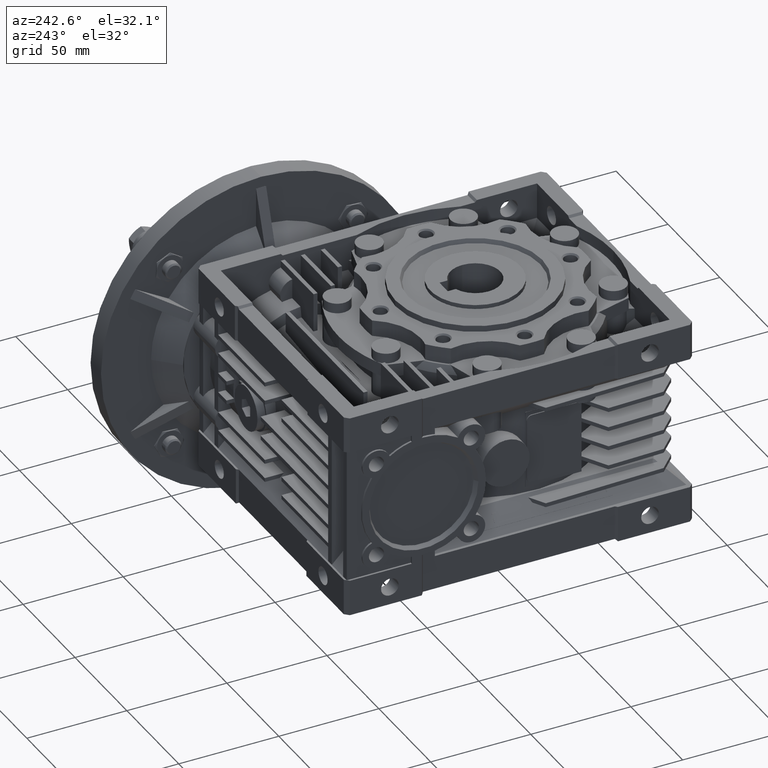
[diagram: clean part render]
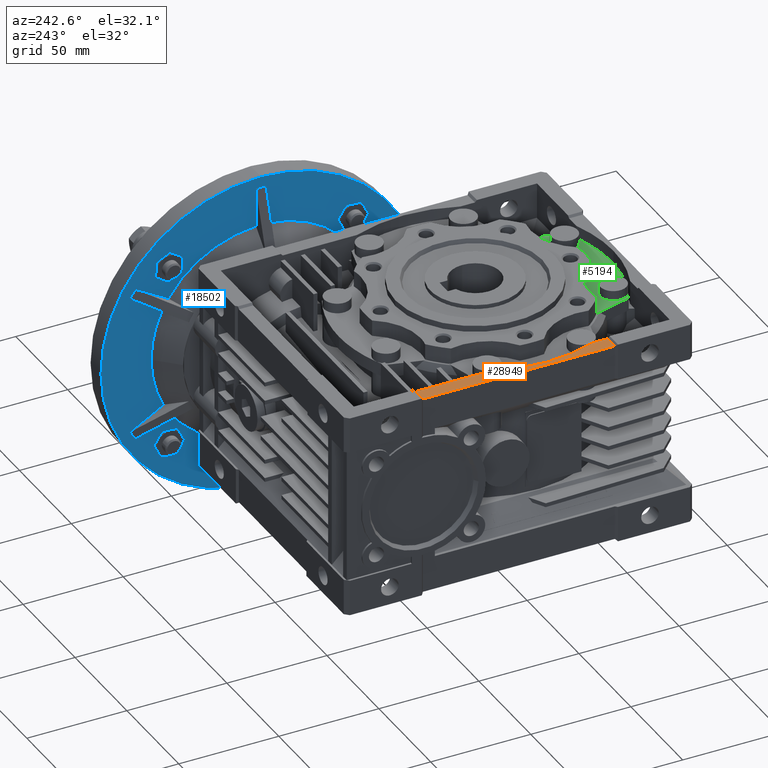
[diagram: same view with three faces highlighted in distinct colors, each labeled with its STEP entity id]
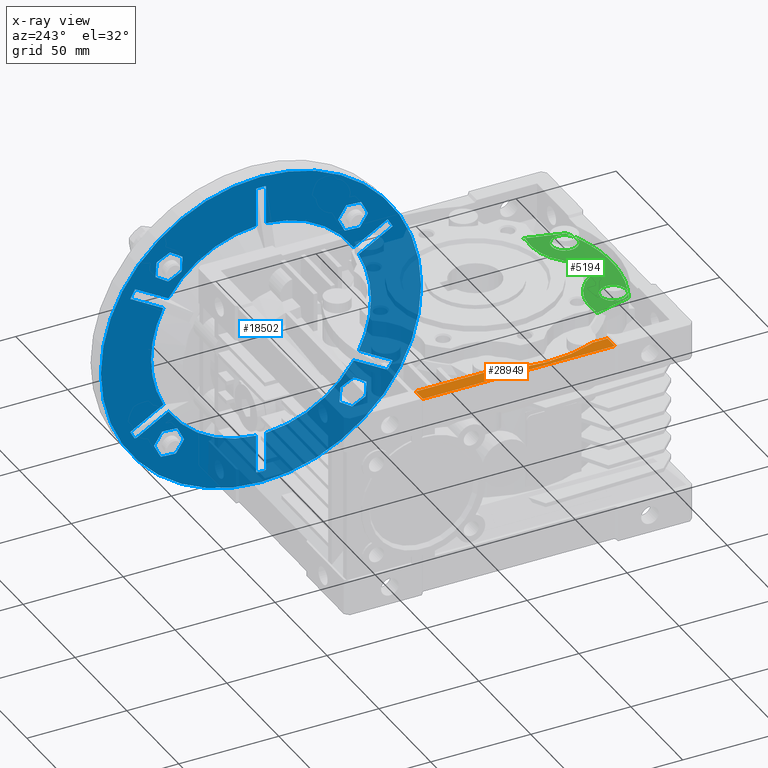
[diagram: x-ray of the same camera — body ghosted, the three highlighted faces saturated]
A machine part, auxiliary view with three faces highlighted in distinct colors.
The next image is the same camera in x-ray (body ghosted, the three faces saturated) — at least one of them is partly hidden behind the body in this view.
Their STEP definitions:

[orange] entity #28949 — the highlighted planar face has unit normal (0, 0, -1).
#1870 = CARTESIAN_POINT ( 'NONE',  ( -64.00000000000000000, 25.78759391645529675, 50.50000000000000000 ) ) ;
#2427 = CARTESIAN_POINT ( 'NONE',  ( -4.163336342344339551E-14, 3.469446951953609850E-15, 50.50000000000000000 ) ) ;
#3190 = DIRECTION ( 'NONE',  ( 1.000000000000000000, 0.000000000000000000, 0.000000000000000000 ) ) ;
#3661 = ORIENTED_EDGE ( 'NONE', *, *, #16108, .F. ) ;
#4116 = CARTESIAN_POINT ( 'NONE',  ( -64.00000000000000000, -33.00000000000000000, 50.50000000000000000 ) ) ;
#5272 = LINE ( 'NONE', #1870, #29502 ) ;
#5726 = EDGE_CURVE ( 'NONE', #38350, #22272, #5272, .T. ) ;
#5918 = CARTESIAN_POINT ( 'NONE',  ( -71.00000000000000000, 63.00000000000000000, 50.50000000000000000 ) ) ;
#6462 = CIRCLE ( 'NONE', #22007, 69.00000000000000000 ) ;
#7681 = PLANE ( 'NONE',  #27819 ) ;
#7692 = CARTESIAN_POINT ( 'NONE',  ( -64.00000000000000000, -33.00000000000000000, 50.50000000000000000 ) ) ;
#7803 = CARTESIAN_POINT ( 'NONE',  ( -64.00000000000000000, 25.78759391645535004, 50.50000000000000000 ) ) ;
#10404 = FACE_OUTER_BOUND ( 'NONE', #42183, .T. ) ;
#10463 = CARTESIAN_POINT ( 'NONE',  ( -64.00000000000000000, 63.00000000000000000, 50.50000000000000000 ) ) ;
#10594 = CARTESIAN_POINT ( 'NONE',  ( -64.00000000000000000, -25.78759391645535004, 50.50000000000000000 ) ) ;
#11573 = ORIENTED_EDGE ( 'NONE', *, *, #32614, .F. ) ;
#12860 = DIRECTION ( 'NONE',  ( 0.000000000000000000, 1.000000000000000000, 0.000000000000000000 ) ) ;
#14544 = LINE ( 'NONE', #19342, #32508 ) ;
#14766 = CARTESIAN_POINT ( 'NONE',  ( -64.00000000000000000, 63.00000000000000000, 50.50000000000000000 ) ) ;
#14801 = VECTOR ( 'NONE', #3190, 1000.000000000000000 ) ;
#16108 = EDGE_CURVE ( 'NONE', #45753, #44665, #30432, .T. ) ;
#16714 = DIRECTION ( 'NONE',  ( 0.000000000000000000, -1.000000000000000000, 0.000000000000000000 ) ) ;
#18456 = DIRECTION ( 'NONE',  ( 0.000000000000000000, -1.000000000000000000, 0.000000000000000000 ) ) ;
#19342 = CARTESIAN_POINT ( 'NONE',  ( -64.00000000000000000, -64.00000000000000000, 50.50000000000000000 ) ) ;
#22007 = AXIS2_PLACEMENT_3D ( 'NONE', #2427, #24358, #27994 ) ;
#22272 = VERTEX_POINT ( 'NONE', #7803 ) ;
#22620 = VECTOR ( 'NONE', #12860, 1000.000000000000000 ) ;
#23737 = CARTESIAN_POINT ( 'NONE',  ( -71.00000000000000000, -33.00000000000000000, 50.50000000000000000 ) ) ;
#23868 = EDGE_CURVE ( 'NONE', #47334, #22272, #6462, .T. ) ;
#24358 = DIRECTION ( 'NONE',  ( 0.000000000000000000, 0.000000000000000000, -1.000000000000000000 ) ) ;
#27018 = DIRECTION ( 'NONE',  ( -1.000000000000000000, 0.000000000000000000, 0.000000000000000000 ) ) ;
#27819 = AXIS2_PLACEMENT_3D ( 'NONE', #14766, #29638, #18456 ) ;
#27994 = DIRECTION ( 'NONE',  ( 0.000000000000000000, -1.000000000000000000, 0.000000000000000000 ) ) ;
#28524 = CARTESIAN_POINT ( 'NONE',  ( -64.00000000000000000, 63.00000000000000000, 50.50000000000000000 ) ) ;
#28605 = EDGE_CURVE ( 'NONE', #47334, #45753, #14544, .T. ) ;
#28949 = ADVANCED_FACE ( 'NONE', ( #10404 ), #7681, .F. ) ;
#29420 = DIRECTION ( 'NONE',  ( 0.000000000000000000, -1.000000000000000000, 0.000000000000000000 ) ) ;
#29502 = VECTOR ( 'NONE', #16714, 1000.000000000000000 ) ;
#29638 = DIRECTION ( 'NONE',  ( 0.000000000000000000, 0.000000000000000000, -1.000000000000000000 ) ) ;
#30432 = LINE ( 'NONE', #4116, #45653 ) ;
#31389 = LINE ( 'NONE', #46222, #22620 ) ;
#32129 = EDGE_CURVE ( 'NONE', #36702, #38350, #36338, .T. ) ;
#32508 = VECTOR ( 'NONE', #29420, 1000.000000000000000 ) ;
#32614 = EDGE_CURVE ( 'NONE', #44665, #36702, #31389, .T. ) ;
#35514 = ORIENTED_EDGE ( 'NONE', *, *, #5726, .F. ) ;
#36338 = LINE ( 'NONE', #28524, #14801 ) ;
#36702 = VERTEX_POINT ( 'NONE', #5918 ) ;
#38350 = VERTEX_POINT ( 'NONE', #10463 ) ;
#42183 = EDGE_LOOP ( 'NONE', ( #47264, #48149, #35514, #42587, #11573, #3661 ) ) ;
#42587 = ORIENTED_EDGE ( 'NONE', *, *, #32129, .F. ) ;
#44665 = VERTEX_POINT ( 'NONE', #23737 ) ;
#45653 = VECTOR ( 'NONE', #27018, 1000.000000000000000 ) ;
#45753 = VERTEX_POINT ( 'NONE', #7692 ) ;
#46222 = CARTESIAN_POINT ( 'NONE',  ( -71.00000000000000000, 63.00000000000000000, 50.50000000000000000 ) ) ;
#47264 = ORIENTED_EDGE ( 'NONE', *, *, #28605, .F. ) ;
#47334 = VERTEX_POINT ( 'NONE', #10594 ) ;
#48149 = ORIENTED_EDGE ( 'NONE', *, *, #23868, .T. ) ;

[blue] entity #18502 — the highlighted planar face has unit normal (1, 0, 0).
#38 = EDGE_CURVE ( 'NONE', #8313, #32405, #8134, .T. ) ;
#54 = CARTESIAN_POINT ( 'NONE',  ( 85.00000000000000000, 60.50000000000000000, -54.89310065937250016 ) ) ;
#280 = EDGE_CURVE ( 'NONE', #9108, #28187, #4928, .T. ) ;
#315 = EDGE_CURVE ( 'NONE', #44248, #38764, #46317, .T. ) ;
#371 = VECTOR ( 'NONE', #7954, 1000.000000000000000 ) ;
#462 = VERTEX_POINT ( 'NONE', #22143 ) ;
#622 = CARTESIAN_POINT ( 'NONE',  ( 85.00000000000000000, 23.31420317944330023, -41.84571066089184654 ) ) ;
#652 = CARTESIAN_POINT ( 'NONE',  ( 85.00000000000000000, 113.0781708933600953, -52.23808473368869443 ) ) ;
#725 = CIRCLE ( 'NONE', #46619, 54.94999999999999574 ) ;
#757 = CARTESIAN_POINT ( 'NONE',  ( 85.00000000000000000, 117.9500000000000028, 0.000000000000000000 ) ) ;
#856 = LINE ( 'NONE', #3781, #12809 ) ;
#914 = EDGE_CURVE ( 'NONE', #37837, #46894, #44803, .T. ) ;
#1146 = VECTOR ( 'NONE', #34290, 1000.000000000000000 ) ;
#1519 = LINE ( 'NONE', #8303, #47036 ) ;
#1537 = EDGE_LOOP ( 'NONE', ( #29978, #36089 ) ) ;
#1744 = CARTESIAN_POINT ( 'NONE',  ( 85.00000000000000000, 117.9500000000000028, 0.000000000000000000 ) ) ;
#1755 = CARTESIAN_POINT ( 'NONE',  ( 85.00000000000000000, 115.2380847336892913, 50.07817089335950556 ) ) ;
#1776 = ORIENTED_EDGE ( 'NONE', *, *, #30442, .F. ) ;
#1822 = EDGE_CURVE ( 'NONE', #4514, #6854, #27323, .T. ) ;
#1949 = EDGE_CURVE ( 'NONE', #19328, #16296, #33408, .T. ) ;
#2080 = ORIENTED_EDGE ( 'NONE', *, *, #46190, .F. ) ;
#2239 = VECTOR ( 'NONE', #42443, 1000.000000000000227 ) ;
#2255 = CARTESIAN_POINT ( 'NONE',  ( 85.00000000000000000, 105.5847557310486025, -52.66477260388689530 ) ) ;
#2287 = CARTESIAN_POINT ( 'NONE',  ( 85.00000000000000000, 63.00000000000000000, 0.000000000000000000 ) ) ;
#2602 = DIRECTION ( 'NONE',  ( -1.000000000000000000, -2.241328441147374739E-46, -8.411704943638519843E-32 ) ) ;
#2626 = ORIENTED_EDGE ( 'NONE', *, *, #37045, .F. ) ;
#2644 = CARTESIAN_POINT ( 'NONE',  ( 84.99999999999998579, 128.3699969061798072, 34.85463396475978470 ) ) ;
#2849 = DIRECTION ( 'NONE',  ( 0.000000000000000000, 1.000000000000000000, -2.664535259100375303E-15 ) ) ;
#3000 = CARTESIAN_POINT ( 'NONE',  ( 85.00000000000000000, 14.21118033648709833, 25.28148682022515104 ) ) ;
#3028 = CARTESIAN_POINT ( 'NONE',  ( 85.00000000000000000, 16.61137135267899723, -38.46852561481439636 ) ) ;
#3196 = CARTESIAN_POINT ( 'NONE',  ( 85.00000000000000000, 65.50000000000000000, 0.000000000000000000 ) ) ;
#3341 = ORIENTED_EDGE ( 'NONE', *, *, #12594, .F. ) ;
#3473 = CIRCLE ( 'NONE', #9705, 54.94999999999999574 ) ;
#3526 = LINE ( 'NONE', #22744, #35771 ) ;
#3627 = DIRECTION ( 'NONE',  ( 0.000000000000000000, -1.010212033325893122E-15, -1.000000000000000000 ) ) ;
#3642 = DIRECTION ( 'NONE',  ( 0.000000000000000000, 0.9983827525638775402, 0.05684962078128076579 ) ) ;
#3781 = CARTESIAN_POINT ( 'NONE',  ( 85.00000000000000000, -0.2688925819407106399, -39.41506350946109904 ) ) ;
#3958 = ORIENTED_EDGE ( 'NONE', *, *, #1949, .F. ) ;
#3985 = ORIENTED_EDGE ( 'NONE', *, *, #28133, .F. ) ;
#4021 = VERTEX_POINT ( 'NONE', #35929 ) ;
#4038 = EDGE_CURVE ( 'NONE', #24314, #27119, #13710, .T. ) ;
#4091 = ORIENTED_EDGE ( 'NONE', *, *, #45293, .F. ) ;
#4143 = DIRECTION ( 'NONE',  ( 0.000000000000000000, 0.9983827525638778733, 0.05684962078127408364 ) ) ;
#4264 = VERTEX_POINT ( 'NONE', #27990 ) ;
#4424 = VECTOR ( 'NONE', #10321, 1000.000000000000114 ) ;
#4490 = VECTOR ( 'NONE', #39121, 1000.000000000000000 ) ;
#4514 = VERTEX_POINT ( 'NONE', #15750 ) ;
#4529 = CIRCLE ( 'NONE', #23190, 54.94999999999999574 ) ;
#4534 = DIRECTION ( 'NONE',  ( 1.000000000000000000, 0.000000000000000000, 0.000000000000000000 ) ) ;
#4542 = EDGE_CURVE ( 'NONE', #24546, #24492, #8662, .T. ) ;
#4654 = CARTESIAN_POINT ( 'NONE',  ( 85.00000000000000000, 10.76191526631110129, -50.07817089335990346 ) ) ;
#4876 = ORIENTED_EDGE ( 'NONE', *, *, #25081, .F. ) ;
#4928 = LINE ( 'NONE', #27575, #20509 ) ;
#5123 = CIRCLE ( 'NONE', #30763, 54.94999999999999574 ) ;
#5335 = DIRECTION ( 'NONE',  ( -1.000000000000000000, 0.000000000000000000, 0.000000000000000000 ) ) ;
#5368 = ORIENTED_EDGE ( 'NONE', *, *, #39312, .F. ) ;
#5398 = PLANE ( 'NONE',  #13318 ) ;
#5419 = DIRECTION ( 'NONE',  ( 0.000000000000000000, 1.000000000000000000, 1.776356839400250070E-15 ) ) ;
#5475 = LINE ( 'NONE', #23471, #29672 ) ;
#5495 = CARTESIAN_POINT ( 'NONE',  ( 85.00000000000000000, 102.6857968205570018, 41.84571066089154812 ) ) ;
#5599 = LINE ( 'NONE', #37992, #25829 ) ;
#5864 = EDGE_CURVE ( 'NONE', #40829, #46754, #3526, .T. ) ;
#5924 = CARTESIAN_POINT ( 'NONE',  ( 85.00000000000000000, 10.33522739611290220, -42.58475573104839640 ) ) ;
#5982 = VECTOR ( 'NONE', #20476, 1000.000000000000114 ) ;
#6082 = VERTEX_POINT ( 'NONE', #7814 ) ;
#6410 = DIRECTION ( 'NONE',  ( 0.000000000000000000, 1.000000000000000000, -2.664535259100375303E-15 ) ) ;
#6422 = DIRECTION ( 'NONE',  ( 0.000000000000000000, 0.4499581604898389986, 0.8930496368111910943 ) ) ;
#6656 = AXIS2_PLACEMENT_3D ( 'NONE', #45732, #5335, #38943 ) ;
#6675 = VERTEX_POINT ( 'NONE', #9719 ) ;
#6699 = CARTESIAN_POINT ( 'NONE',  ( 85.00000000000000000, 109.3886286473212976, 38.46852561481409793 ) ) ;
#6854 = VERTEX_POINT ( 'NONE', #32645 ) ;
#6917 = VERTEX_POINT ( 'NONE', #47451 ) ;
#7085 = EDGE_LOOP ( 'NONE', ( #13291, #43324, #14499, #27297, #11898, #44106, #4876, #22983, #3341, #10022, #42201, #40182, #20968, #41844, #16768, #30419, #1776, #24891, #44315, #48034, #18214, #20999, #10717, #41710, #32342, #8333 ) ) ;
#7104 = LINE ( 'NONE', #47999, #20869 ) ;
#7168 = DIRECTION ( 'NONE',  ( 0.000000000000000000, -0.8930496368111866534, 0.4499581604898478249 ) ) ;
#7267 = CARTESIAN_POINT ( 'NONE',  ( 85.00000000000000000, 23.31420317944330023, -41.84571066089184654 ) ) ;
#7445 = DIRECTION ( 'NONE',  ( 0.000000000000000000, 1.000000000000000000, 1.421085471520199898E-14 ) ) ;
#7529 = LINE ( 'NONE', #3196, #46846 ) ;
#7541 = DIRECTION ( 'NONE',  ( 0.000000000000000000, 0.000000000000000000, 1.000000000000000000 ) ) ;
#7630 = VERTEX_POINT ( 'NONE', #21867 ) ;
#7793 = LINE ( 'NONE', #27042, #18974 ) ;
#7814 = CARTESIAN_POINT ( 'NONE',  ( 85.00000000000000000, 116.4553559394375100, -45.53525290692439853 ) ) ;
#7817 = EDGE_CURVE ( 'NONE', #17200, #17262, #5475, .T. ) ;
#7850 = DIRECTION ( 'NONE',  ( 0.000000000000000000, 0.000000000000000000, 1.000000000000000000 ) ) ;
#7954 = DIRECTION ( 'NONE',  ( 0.000000000000000000, 0.05684962078127796942, -0.9983827525638776512 ) ) ;
#8131 = CARTESIAN_POINT ( 'NONE',  ( 85.00000000000000000, -0.2688925819407106399, 39.41506350946109904 ) ) ;
#8134 = LINE ( 'NONE', #23013, #23548 ) ;
#8147 = LINE ( 'NONE', #27399, #20911 ) ;
#8231 = LINE ( 'NONE', #19716, #34571 ) ;
#8303 = CARTESIAN_POINT ( 'NONE',  ( 85.00000000000000000, 60.50000000000000000, 0.000000000000000000 ) ) ;
#8313 = VERTEX_POINT ( 'NONE', #34395 ) ;
#8333 = ORIENTED_EDGE ( 'NONE', *, *, #10149, .F. ) ;
#8491 = DIRECTION ( 'NONE',  ( 0.000000000000000000, -0.8660254037844387076, 0.4999999999999998890 ) ) ;
#8662 = LINE ( 'NONE', #652, #34060 ) ;
#8938 = EDGE_CURVE ( 'NONE', #24492, #24314, #31735, .T. ) ;
#9019 = FACE_OUTER_BOUND ( 'NONE', #1537, .T. ) ;
#9108 = VERTEX_POINT ( 'NONE', #24062 ) ;
#9159 = ORIENTED_EDGE ( 'NONE', *, *, #25518, .F. ) ;
#9176 = VERTEX_POINT ( 'NONE', #39406 ) ;
#9304 = DIRECTION ( 'NONE',  ( 0.000000000000000000, 0.8660254037844387076, 0.4999999999999998890 ) ) ;
#9381 = EDGE_CURVE ( 'NONE', #28742, #39655, #35434, .T. ) ;
#9705 = AXIS2_PLACEMENT_3D ( 'NONE', #31888, #13330, #43071 ) ;
#9719 = CARTESIAN_POINT ( 'NONE',  ( 85.00000000000000000, -0.2688925819407106399, 39.41506350946109904 ) ) ;
#10022 = ORIENTED_EDGE ( 'NONE', *, *, #28087, .F. ) ;
#10030 = CIRCLE ( 'NONE', #36497, 54.94999999999999574 ) ;
#10149 = EDGE_CURVE ( 'NONE', #39655, #26872, #31301, .T. ) ;
#10212 = DIRECTION ( 'NONE',  ( 0.000000000000000000, 0.05684962078127049623, -0.9983827525638780953 ) ) ;
#10273 = EDGE_CURVE ( 'NONE', #6082, #24546, #27374, .T. ) ;
#10321 = DIRECTION ( 'NONE',  ( 0.000000000000000000, -0.8362000160299132290, -0.5484245920740360436 ) ) ;
#10373 = CARTESIAN_POINT ( 'NONE',  ( 85.00000000000000000, 105.5847557310486025, -52.66477260388689530 ) ) ;
#10516 = EDGE_CURVE ( 'NONE', #11170, #21455, #47251, .T. ) ;
#10523 = VECTOR ( 'NONE', #44168, 1000.000000000000227 ) ;
#10717 = ORIENTED_EDGE ( 'NONE', *, *, #25375, .F. ) ;
#10723 = VERTEX_POINT ( 'NONE', #11892 ) ;
#10827 = VECTOR ( 'NONE', #43737, 1000.000000000000000 ) ;
#10976 = DIRECTION ( 'NONE',  ( 0.000000000000000000, -0.4499581604898449938, -0.8930496368111879857 ) ) ;
#11161 = CARTESIAN_POINT ( 'NONE',  ( 85.00000000000000000, 104.8457106608919958, -39.68579682055654700 ) ) ;
#11170 = VERTEX_POINT ( 'NONE', #32090 ) ;
#11406 = LINE ( 'NONE', #33606, #24698 ) ;
#11552 = CARTESIAN_POINT ( 'NONE',  ( 85.00000000000000000, 63.00000000000000000, 0.000000000000000000 ) ) ;
#11579 = CARTESIAN_POINT ( 'NONE',  ( 85.00000000000000000, 63.00000000000001421, -80.00000000000000000 ) ) ;
#11602 = EDGE_LOOP ( 'NONE', ( #21950, #29948, #4091, #3985, #42626, #12898 ) ) ;
#11710 = DIRECTION ( 'NONE',  ( 0.000000000000000000, -0.8362000160299163376, -0.5484245920740312696 ) ) ;
#11738 = CARTESIAN_POINT ( 'NONE',  ( 85.00000000000000000, 60.50000000000000000, 74.50000000000000000 ) ) ;
#11892 = CARTESIAN_POINT ( 'NONE',  ( 85.00000000000000000, 9.544644060562900378, 45.53525290692480354 ) ) ;
#11898 = ORIENTED_EDGE ( 'NONE', *, *, #12191, .F. ) ;
#12186 = DIRECTION ( 'NONE',  ( 0.000000000000000000, -0.05684962078127688001, 0.9983827525638777622 ) ) ;
#12191 = EDGE_CURVE ( 'NONE', #39338, #35847, #25542, .T. ) ;
#12376 = CARTESIAN_POINT ( 'NONE',  ( 85.00000000000000000, 63.00000000000000000, 0.000000000000000000 ) ) ;
#12594 = EDGE_CURVE ( 'NONE', #6675, #6917, #22763, .T. ) ;
#12665 = LINE ( 'NONE', #30718, #22542 ) ;
#12667 = FACE_BOUND ( 'NONE', #43571, .T. ) ;
#12710 = VERTEX_POINT ( 'NONE', #38611 ) ;
#12809 = VECTOR ( 'NONE', #19138, 1000.000000000000000 ) ;
#12898 = ORIENTED_EDGE ( 'NONE', *, *, #8938, .F. ) ;
#12930 = LINE ( 'NONE', #16355, #21566 ) ;
#13004 = CARTESIAN_POINT ( 'NONE',  ( 85.00000000000000000, 116.4553559394375100, -45.53525290692439853 ) ) ;
#13074 = VERTEX_POINT ( 'NONE', #46997 ) ;
#13163 = VERTEX_POINT ( 'NONE', #18292 ) ;
#13261 = LINE ( 'NONE', #20836, #4424 ) ;
#13291 = ORIENTED_EDGE ( 'NONE', *, *, #9381, .F. ) ;
#13318 = AXIS2_PLACEMENT_3D ( 'NONE', #1744, #16594, #22335 ) ;
#13330 = DIRECTION ( 'NONE',  ( -1.000000000000000000, 0.000000000000000000, 0.000000000000000000 ) ) ;
#13432 = CARTESIAN_POINT ( 'NONE',  ( 85.00000000000000000, 102.2591089503588506, 49.33912582320300544 ) ) ;
#13468 = DIRECTION ( 'NONE',  ( 0.000000000000000000, -0.8660254037844383745, -0.5000000000000003331 ) ) ;
#13701 = CARTESIAN_POINT ( 'NONE',  ( 85.00000000000000000, 65.50000000000000000, -74.50000000000000000 ) ) ;
#13710 = LINE ( 'NONE', #18532, #31725 ) ;
#13733 = ORIENTED_EDGE ( 'NONE', *, *, #39169, .F. ) ;
#13994 = EDGE_CURVE ( 'NONE', #21455, #31359, #12930, .T. ) ;
#14117 = CARTESIAN_POINT ( 'NONE',  ( 85.00000000000000000, 63.00000000000000000, 0.000000000000000000 ) ) ;
#14174 = AXIS2_PLACEMENT_3D ( 'NONE', #21131, #2602, #2849 ) ;
#14233 = LINE ( 'NONE', #28394, #10827 ) ;
#14443 = LINE ( 'NONE', #3028, #10523 ) ;
#14470 = ORIENTED_EDGE ( 'NONE', *, *, #7817, .F. ) ;
#14499 = ORIENTED_EDGE ( 'NONE', *, *, #280, .F. ) ;
#15661 = CARTESIAN_POINT ( 'NONE',  ( 85.00000000000000000, 63.00000000000000000, 0.000000000000000000 ) ) ;
#15750 = CARTESIAN_POINT ( 'NONE',  ( 85.00000000000000000, -2.768892581940698872, -35.08493649053890806 ) ) ;
#15972 = DIRECTION ( 'NONE',  ( 0.000000000000000000, 1.000000000000000000, 0.000000000000000000 ) ) ;
#16154 = CARTESIAN_POINT ( 'NONE',  ( 85.00000000000000000, 111.7888196635128963, 25.28148682022509774 ) ) ;
#16296 = VERTEX_POINT ( 'NONE', #35328 ) ;
#16355 = CARTESIAN_POINT ( 'NONE',  ( 85.00000000000000000, 10.76191526631110129, -50.07817089335990346 ) ) ;
#16388 = VECTOR ( 'NONE', #40088, 1000.000000000000000 ) ;
#16594 = DIRECTION ( 'NONE',  ( 1.000000000000000000, 0.000000000000000000, 0.000000000000000000 ) ) ;
#16634 = ORIENTED_EDGE ( 'NONE', *, *, #20851, .F. ) ;
#16768 = ORIENTED_EDGE ( 'NONE', *, *, #37583, .F. ) ;
#17102 = CARTESIAN_POINT ( 'NONE',  ( 85.00000000000000000, 17.46474709307539896, -53.45535593943730390 ) ) ;
#17143 = CARTESIAN_POINT ( 'NONE',  ( 85.00000000000000000, 60.50000000000000000, -74.50000000000000000 ) ) ;
#17200 = VERTEX_POINT ( 'NONE', #45491 ) ;
#17262 = VERTEX_POINT ( 'NONE', #27973 ) ;
#17607 = ORIENTED_EDGE ( 'NONE', *, *, #46794, .F. ) ;
#17678 = AXIS2_PLACEMENT_3D ( 'NONE', #14117, #22160, #3627 ) ;
#17774 = VECTOR ( 'NONE', #28925, 1000.000000000000000 ) ;
#17898 = LINE ( 'NONE', #32754, #37930 ) ;
#18171 = CARTESIAN_POINT ( 'NONE',  ( 85.00000000000000000, 13.66087417679690041, 39.25910895035870141 ) ) ;
#18173 = CIRCLE ( 'NONE', #47686, 80.00000000000000000 ) ;
#18214 = ORIENTED_EDGE ( 'NONE', *, *, #40014, .F. ) ;
#18292 = CARTESIAN_POINT ( 'NONE',  ( 85.00000000000000000, 60.50000000000000000, 54.89310065937250016 ) ) ;
#18502 = ADVANCED_FACE ( 'NONE', ( #34629, #20018, #12667, #30965, #27547, #9019 ), #5398, .F. ) ;
#18532 = CARTESIAN_POINT ( 'NONE',  ( 85.00000000000000000, 101.4685256148145953, -46.38862864732089974 ) ) ;
#18974 = VECTOR ( 'NONE', #4143, 1000.000000000000000 ) ;
#19138 = DIRECTION ( 'NONE',  ( 0.000000000000000000, -0.4999999999999998890, 0.8660254037844387076 ) ) ;
#19156 = CARTESIAN_POINT ( 'NONE',  ( 85.00000000000000000, 104.8457106608919958, -39.68579682055654700 ) ) ;
#19295 = EDGE_CURVE ( 'NONE', #462, #12710, #5599, .T. ) ;
#19328 = VERTEX_POINT ( 'NONE', #622 ) ;
#19638 = CARTESIAN_POINT ( 'NONE',  ( 85.00000000000000000, 63.00000000000000000, 0.000000000000000000 ) ) ;
#19716 = CARTESIAN_POINT ( 'NONE',  ( 85.00000000000000000, 9.544644060562900378, 45.53525290692480354 ) ) ;
#19764 = EDGE_CURVE ( 'NONE', #40090, #25720, #42671, .T. ) ;
#19861 = DIRECTION ( 'NONE',  ( 0.000000000000000000, 0.8660254037844383745, -0.5000000000000003331 ) ) ;
#19961 = CARTESIAN_POINT ( 'NONE',  ( 85.00000000000000000, 125.8902969141873172, 39.19648119876966064 ) ) ;
#20018 = FACE_BOUND ( 'NONE', #45274, .T. ) ;
#20395 = VERTEX_POINT ( 'NONE', #21889 ) ;
#20462 = DIRECTION ( 'NONE',  ( -1.000000000000000000, 0.000000000000000000, 0.000000000000000000 ) ) ;
#20476 = DIRECTION ( 'NONE',  ( 0.000000000000000000, 0.5484245920740398184, -0.8362000160299106755 ) ) ;
#20509 = VECTOR ( 'NONE', #9304, 1000.000000000000000 ) ;
#20666 = VECTOR ( 'NONE', #31232, 1000.000000000000114 ) ;
#20836 = CARTESIAN_POINT ( 'NONE',  ( 85.00000000000000000, 23.74089104964149755, -49.33912582320330387 ) ) ;
#20851 = EDGE_CURVE ( 'NONE', #31359, #31500, #14233, .T. ) ;
#20869 = VECTOR ( 'NONE', #10976, 1000.000000000000227 ) ;
#20911 = VECTOR ( 'NONE', #37888, 999.9999999999998863 ) ;
#20968 = ORIENTED_EDGE ( 'NONE', *, *, #39633, .F. ) ;
#20999 = ORIENTED_EDGE ( 'NONE', *, *, #19295, .F. ) ;
#21101 = CARTESIAN_POINT ( 'NONE',  ( 85.00000000000000000, 102.6857968205570018, 41.84571066089154812 ) ) ;
#21131 = CARTESIAN_POINT ( 'NONE',  ( 85.00000000000000000, 63.00000000000000000, 0.000000000000000000 ) ) ;
#21207 = VERTEX_POINT ( 'NONE', #13701 ) ;
#21455 = VERTEX_POINT ( 'NONE', #4654 ) ;
#21499 = EDGE_CURVE ( 'NONE', #40072, #20395, #12665, .T. ) ;
#21566 = VECTOR ( 'NONE', #12186, 999.9999999999998863 ) ;
#21708 = AXIS2_PLACEMENT_3D ( 'NONE', #15661, #22722, #7850 ) ;
#21867 = CARTESIAN_POINT ( 'NONE',  ( 85.00000000000000000, 102.2591089503588506, 49.33912582320300544 ) ) ;
#21888 = ORIENTED_EDGE ( 'NONE', *, *, #43782, .F. ) ;
#21889 = CARTESIAN_POINT ( 'NONE',  ( 85.00000000000000000, -0.2688925819407106399, -39.41506350946109904 ) ) ;
#21950 = ORIENTED_EDGE ( 'NONE', *, *, #4542, .F. ) ;
#22143 = CARTESIAN_POINT ( 'NONE',  ( 85.00000000000000000, 125.8902969141872887, -39.19648119876967485 ) ) ;
#22153 = AXIS2_PLACEMENT_3D ( 'NONE', #40821, #47872, #7445 ) ;
#22160 = DIRECTION ( 'NONE',  ( -1.000000000000000000, 0.000000000000000000, 0.000000000000000000 ) ) ;
#22241 = CIRCLE ( 'NONE', #37063, 54.94999999999999574 ) ;
#22335 = DIRECTION ( 'NONE',  ( 0.000000000000000000, 1.000000000000000000, 0.000000000000000000 ) ) ;
#22542 = VECTOR ( 'NONE', #42659, 1000.000000000000114 ) ;
#22660 = CARTESIAN_POINT ( 'NONE',  ( 85.00000000000000000, 16.71118033648709300, -29.61161383914734557 ) ) ;
#22722 = DIRECTION ( 'NONE',  ( 1.000000000000000000, 0.000000000000000000, 0.000000000000000000 ) ) ;
#22744 = CARTESIAN_POINT ( 'NONE',  ( 85.00000000000000000, 109.3886286473212976, 38.46852561481409793 ) ) ;
#22763 = LINE ( 'NONE', #8131, #23758 ) ;
#22983 = ORIENTED_EDGE ( 'NONE', *, *, #38374, .F. ) ;
#23013 = CARTESIAN_POINT ( 'NONE',  ( 85.00000000000000000, 111.7888196635128963, -25.28148682022515104 ) ) ;
#23190 = AXIS2_PLACEMENT_3D ( 'NONE', #41715, #42206, #33935 ) ;
#23223 = EDGE_CURVE ( 'NONE', #42146, #44248, #31101, .T. ) ;
#23471 = CARTESIAN_POINT ( 'NONE',  ( 85.00000000000000000, 20.41524426895175637, 52.66477260388730031 ) ) ;
#23527 = EDGE_CURVE ( 'NONE', #13074, #21207, #7529, .T. ) ;
#23548 = VECTOR ( 'NONE', #41274, 1000.000000000000000 ) ;
#23758 = VECTOR ( 'NONE', #19861, 1000.000000000000114 ) ;
#23781 = ORIENTED_EDGE ( 'NONE', *, *, #5864, .F. ) ;
#24041 = CARTESIAN_POINT ( 'NONE',  ( 85.00000000000000000, 12.92182910664029727, 52.23808473368909944 ) ) ;
#24045 = DIRECTION ( 'NONE',  ( 0.000000000000000000, 0.8930496368111867644, -0.4499581604898473808 ) ) ;
#24062 = CARTESIAN_POINT ( 'NONE',  ( 85.00000000000000000, 109.2888196635129106, 29.61161383914734557 ) ) ;
#24314 = VERTEX_POINT ( 'NONE', #35517 ) ;
#24492 = VERTEX_POINT ( 'NONE', #10373 ) ;
#24504 = LINE ( 'NONE', #21101, #4490 ) ;
#24546 = VERTEX_POINT ( 'NONE', #26904 ) ;
#24698 = VECTOR ( 'NONE', #33378, 1000.000000000000000 ) ;
#24734 = CARTESIAN_POINT ( 'NONE',  ( 85.00000000000000000, 65.50000000000000000, 74.50000000000000000 ) ) ;
#24891 = ORIENTED_EDGE ( 'NONE', *, *, #914, .F. ) ;
#25081 = EDGE_CURVE ( 'NONE', #13163, #42892, #1519, .T. ) ;
#25230 = LINE ( 'NONE', #18171, #44872 ) ;
#25375 = EDGE_CURVE ( 'NONE', #32405, #462, #27647, .T. ) ;
#25449 = LINE ( 'NONE', #40321, #16388 ) ;
#25518 = EDGE_CURVE ( 'NONE', #10723, #47158, #8231, .T. ) ;
#25542 = LINE ( 'NONE', #40414, #1146 ) ;
#25720 = VERTEX_POINT ( 'NONE', #11579 ) ;
#25829 = VECTOR ( 'NONE', #8491, 1000.000000000000000 ) ;
#25876 = VECTOR ( 'NONE', #26514, 1000.000000000000227 ) ;
#25883 = VECTOR ( 'NONE', #10212, 1000.000000000000000 ) ;
#26041 = LINE ( 'NONE', #11161, #47985 ) ;
#26318 = CARTESIAN_POINT ( 'NONE',  ( 85.00000000000000000, 16.61137135267899723, -38.46852561481439636 ) ) ;
#26421 = DIRECTION ( 'NONE',  ( -1.000000000000000000, -6.313825208286829550E-17, 0.000000000000000000 ) ) ;
#26514 = DIRECTION ( 'NONE',  ( 0.000000000000000000, -0.8930496368111899841, 0.4499581604898410525 ) ) ;
#26636 = DIRECTION ( 'NONE',  ( 0.000000000000000000, 0.5484245920740338232, -0.8362000160299146723 ) ) ;
#26668 = VERTEX_POINT ( 'NONE', #3000 ) ;
#26775 = EDGE_CURVE ( 'NONE', #26872, #8313, #5123, .T. ) ;
#26797 = CARTESIAN_POINT ( 'NONE',  ( 85.00000000000000000, 63.00000000000000000, 80.00000000000000000 ) ) ;
#26872 = VERTEX_POINT ( 'NONE', #757 ) ;
#26904 = CARTESIAN_POINT ( 'NONE',  ( 85.00000000000000000, 113.0781708933600953, -52.23808473368869443 ) ) ;
#27042 = CARTESIAN_POINT ( 'NONE',  ( 85.00000000000000000, 12.92182910664029727, 52.23808473368909944 ) ) ;
#27119 = VERTEX_POINT ( 'NONE', #19156 ) ;
#27157 = LINE ( 'NONE', #41530, #30183 ) ;
#27297 = ORIENTED_EDGE ( 'NONE', *, *, #44993, .F. ) ;
#27315 = DIRECTION ( 'NONE',  ( 0.000000000000000000, 0.000000000000000000, 1.000000000000000000 ) ) ;
#27323 = LINE ( 'NONE', #42194, #20666 ) ;
#27374 = LINE ( 'NONE', #13004, #30508 ) ;
#27399 = CARTESIAN_POINT ( 'NONE',  ( 85.00000000000000000, 14.21118033648709833, 25.28148682022515104 ) ) ;
#27547 = FACE_BOUND ( 'NONE', #11602, .T. ) ;
#27575 = CARTESIAN_POINT ( 'NONE',  ( 85.00000000000000000, 109.2888196635129106, 29.61161383914734557 ) ) ;
#27647 = CIRCLE ( 'NONE', #6656, 74.70000000000000284 ) ;
#27973 = CARTESIAN_POINT ( 'NONE',  ( 85.00000000000000000, 24.53147438518575640, 46.38862864732109870 ) ) ;
#27990 = CARTESIAN_POINT ( 'NONE',  ( 85.00000000000000000, 8.050000000000000711, 6.729434161314705542E-15 ) ) ;
#28087 = EDGE_CURVE ( 'NONE', #38957, #6675, #11406, .T. ) ;
#28133 = EDGE_CURVE ( 'NONE', #27119, #4021, #26041, .T. ) ;
#28187 = VERTEX_POINT ( 'NONE', #19961 ) ;
#28394 = CARTESIAN_POINT ( 'NONE',  ( 85.00000000000000000, 10.33522739611290220, -42.58475573104839640 ) ) ;
#28742 = VERTEX_POINT ( 'NONE', #2644 ) ;
#28925 = DIRECTION ( 'NONE',  ( 0.000000000000000000, -0.9983827525638778733, -0.05684962078127428486 ) ) ;
#28980 = EDGE_CURVE ( 'NONE', #30867, #9176, #32618, .T. ) ;
#29672 = VECTOR ( 'NONE', #26636, 1000.000000000000000 ) ;
#29755 = CARTESIAN_POINT ( 'NONE',  ( 85.00000000000000000, 63.00000000000000000, 0.000000000000000000 ) ) ;
#29948 = ORIENTED_EDGE ( 'NONE', *, *, #10273, .F. ) ;
#29978 = ORIENTED_EDGE ( 'NONE', *, *, #19764, .F. ) ;
#30074 = CIRCLE ( 'NONE', #17678, 54.94999999999999574 ) ;
#30183 = VECTOR ( 'NONE', #15972, 1000.000000000000000 ) ;
#30269 = CARTESIAN_POINT ( 'NONE',  ( 85.00000000000000000, 21.15428933910829556, 39.68579682055684543 ) ) ;
#30376 = ORIENTED_EDGE ( 'NONE', *, *, #13994, .F. ) ;
#30419 = ORIENTED_EDGE ( 'NONE', *, *, #21499, .F. ) ;
#30442 = EDGE_CURVE ( 'NONE', #46894, #40072, #725, .T. ) ;
#30508 = VECTOR ( 'NONE', #30544, 1000.000000000000114 ) ;
#30544 = DIRECTION ( 'NONE',  ( 0.000000000000000000, -0.4499581604898382214, -0.8930496368111915384 ) ) ;
#30718 = CARTESIAN_POINT ( 'NONE',  ( 85.00000000000000000, 16.71118033648709300, -29.61161383914734557 ) ) ;
#30749 = CARTESIAN_POINT ( 'NONE',  ( 85.00000000000000000, 115.2380847336892913, 50.07817089335950556 ) ) ;
#30763 = AXIS2_PLACEMENT_3D ( 'NONE', #2287, #32964, #6410 ) ;
#30867 = VERTEX_POINT ( 'NONE', #30269 ) ;
#30965 = FACE_BOUND ( 'NONE', #36593, .T. ) ;
#31035 = EDGE_CURVE ( 'NONE', #21207, #37837, #25449, .T. ) ;
#31101 = LINE ( 'NONE', #45934, #43745 ) ;
#31232 = DIRECTION ( 'NONE',  ( 0.000000000000000000, 0.8660254037844383745, 0.5000000000000003331 ) ) ;
#31301 = CIRCLE ( 'NONE', #14174, 54.94999999999999574 ) ;
#31359 = VERTEX_POINT ( 'NONE', #5924 ) ;
#31500 = VERTEX_POINT ( 'NONE', #26318 ) ;
#31725 = VECTOR ( 'NONE', #6422, 1000.000000000000227 ) ;
#31735 = LINE ( 'NONE', #2255, #36784 ) ;
#31888 = CARTESIAN_POINT ( 'NONE',  ( 85.00000000000000000, 63.00000000000000000, 0.000000000000000000 ) ) ;
#31982 = DIRECTION ( 'NONE',  ( 0.000000000000000000, -0.5484245920740398184, 0.8362000160299106755 ) ) ;
#32090 = CARTESIAN_POINT ( 'NONE',  ( 85.00000000000000000, 17.46474709307539896, -53.45535593943730390 ) ) ;
#32137 = ORIENTED_EDGE ( 'NONE', *, *, #47229, .F. ) ;
#32342 = ORIENTED_EDGE ( 'NONE', *, *, #26775, .F. ) ;
#32405 = VERTEX_POINT ( 'NONE', #41609 ) ;
#32618 = LINE ( 'NONE', #47416, #17774 ) ;
#32645 = CARTESIAN_POINT ( 'NONE',  ( 85.00000000000000000, 14.21118033648709833, -25.28148682022515104 ) ) ;
#32754 = CARTESIAN_POINT ( 'NONE',  ( 85.00000000000000000, 115.6647726038873998, 42.58475573104804823 ) ) ;
#32964 = DIRECTION ( 'NONE',  ( -1.000000000000000000, -2.241328441147374739E-46, -8.411704943638519843E-32 ) ) ;
#33058 = CIRCLE ( 'NONE', #22153, 74.70000000000001705 ) ;
#33378 = DIRECTION ( 'NONE',  ( 0.000000000000000000, 0.4999999999999998890, 0.8660254037844387076 ) ) ;
#33408 = LINE ( 'NONE', #7267, #371 ) ;
#33606 = CARTESIAN_POINT ( 'NONE',  ( 85.00000000000000000, -2.768892581940698872, 35.08493649053890806 ) ) ;
#33693 = CARTESIAN_POINT ( 'NONE',  ( 85.00000000000000000, 65.50000000000000000, 54.89310065937250016 ) ) ;
#33865 = CARTESIAN_POINT ( 'NONE',  ( 85.00000000000000000, 60.50000000000000000, 0.000000000000000000 ) ) ;
#33935 = DIRECTION ( 'NONE',  ( 0.000000000000000000, 1.010212033325893122E-15, -1.000000000000000000 ) ) ;
#34005 = DIRECTION ( 'NONE',  ( 0.000000000000000000, 0.000000000000000000, 1.000000000000000000 ) ) ;
#34060 = VECTOR ( 'NONE', #41825, 999.9999999999998863 ) ;
#34290 = DIRECTION ( 'NONE',  ( 0.000000000000000000, 0.000000000000000000, -1.000000000000000000 ) ) ;
#34395 = CARTESIAN_POINT ( 'NONE',  ( 85.00000000000000000, 111.7888196635128963, -25.28148682022515104 ) ) ;
#34571 = VECTOR ( 'NONE', #42364, 1000.000000000000227 ) ;
#34629 = FACE_BOUND ( 'NONE', #7085, .T. ) ;
#34845 = LINE ( 'NONE', #42869, #5982 ) ;
#34893 = EDGE_CURVE ( 'NONE', #25720, #40090, #18173, .T. ) ;
#35328 = CARTESIAN_POINT ( 'NONE',  ( 85.00000000000000000, 23.74089104964149755, -49.33912582320330387 ) ) ;
#35434 = LINE ( 'NONE', #42961, #47640 ) ;
#35517 = CARTESIAN_POINT ( 'NONE',  ( 85.00000000000000000, 101.4685256148145953, -46.38862864732089974 ) ) ;
#35771 = VECTOR ( 'NONE', #7168, 999.9999999999998863 ) ;
#35847 = VERTEX_POINT ( 'NONE', #33693 ) ;
#35929 = CARTESIAN_POINT ( 'NONE',  ( 85.00000000000000000, 112.3391258232034033, -39.25910895035834614 ) ) ;
#36068 = EDGE_CURVE ( 'NONE', #4264, #26668, #3473, .T. ) ;
#36089 = ORIENTED_EDGE ( 'NONE', *, *, #34893, .F. ) ;
#36118 = EDGE_CURVE ( 'NONE', #28187, #28742, #33058, .T. ) ;
#36497 = AXIS2_PLACEMENT_3D ( 'NONE', #11552, #26421, #41283 ) ;
#36583 = DIRECTION ( 'NONE',  ( 0.000000000000000000, 0.000000000000000000, -1.000000000000000000 ) ) ;
#36593 = EDGE_LOOP ( 'NONE', ( #30376, #38334, #17607, #3958, #21888, #16634 ) ) ;
#36658 = ORIENTED_EDGE ( 'NONE', *, *, #28980, .F. ) ;
#36784 = VECTOR ( 'NONE', #31982, 1000.000000000000114 ) ;
#37045 = EDGE_CURVE ( 'NONE', #47158, #17200, #7793, .T. ) ;
#37063 = AXIS2_PLACEMENT_3D ( 'NONE', #29755, #45813, #5419 ) ;
#37422 = CARTESIAN_POINT ( 'NONE',  ( 85.00000000000000000, -2.768892581940698872, 35.08493649053890806 ) ) ;
#37583 = EDGE_CURVE ( 'NONE', #20395, #4514, #856, .T. ) ;
#37837 = VERTEX_POINT ( 'NONE', #17143 ) ;
#37888 = DIRECTION ( 'NONE',  ( 0.000000000000000000, -0.8660254037844390407, 0.4999999999999995004 ) ) ;
#37930 = VECTOR ( 'NONE', #11710, 1000.000000000000000 ) ;
#37992 = CARTESIAN_POINT ( 'NONE',  ( 85.00000000000000000, 125.8902969141872887, -39.19648119876970327 ) ) ;
#38334 = ORIENTED_EDGE ( 'NONE', *, *, #10516, .F. ) ;
#38374 = EDGE_CURVE ( 'NONE', #6917, #13163, #30074, .T. ) ;
#38611 = CARTESIAN_POINT ( 'NONE',  ( 85.00000000000000000, 109.2888196635129106, -29.61161383914734557 ) ) ;
#38764 = VERTEX_POINT ( 'NONE', #44025 ) ;
#38943 = DIRECTION ( 'NONE',  ( 0.000000000000000000, -1.690600656641386218E-14, -1.000000000000000000 ) ) ;
#38957 = VERTEX_POINT ( 'NONE', #37422 ) ;
#39121 = DIRECTION ( 'NONE',  ( 0.000000000000000000, -0.05684962078127060031, 0.9983827525638780953 ) ) ;
#39169 = EDGE_CURVE ( 'NONE', #17262, #30867, #7104, .T. ) ;
#39312 = EDGE_CURVE ( 'NONE', #46754, #7630, #24504, .T. ) ;
#39338 = VERTEX_POINT ( 'NONE', #24734 ) ;
#39406 = CARTESIAN_POINT ( 'NONE',  ( 85.00000000000000000, 13.66087417679690041, 39.25910895035870141 ) ) ;
#39633 = EDGE_CURVE ( 'NONE', #6854, #4264, #4529, .T. ) ;
#39655 = VERTEX_POINT ( 'NONE', #16154 ) ;
#39938 = EDGE_CURVE ( 'NONE', #42892, #39338, #27157, .T. ) ;
#39951 = EDGE_CURVE ( 'NONE', #26668, #38957, #8147, .T. ) ;
#39979 = VECTOR ( 'NONE', #7541, 1000.000000000000000 ) ;
#40014 = EDGE_CURVE ( 'NONE', #12710, #13074, #10030, .T. ) ;
#40072 = VERTEX_POINT ( 'NONE', #22660 ) ;
#40088 = DIRECTION ( 'NONE',  ( 0.000000000000000000, -1.000000000000000000, 0.000000000000000000 ) ) ;
#40090 = VERTEX_POINT ( 'NONE', #26797 ) ;
#40182 = ORIENTED_EDGE ( 'NONE', *, *, #36068, .F. ) ;
#40321 = CARTESIAN_POINT ( 'NONE',  ( 85.00000000000000000, 117.9500000000000028, -74.50000000000000000 ) ) ;
#40414 = CARTESIAN_POINT ( 'NONE',  ( 85.00000000000000000, 65.50000000000000000, 0.000000000000000000 ) ) ;
#40821 = CARTESIAN_POINT ( 'NONE',  ( 85.00000000000000000, 62.30000000000000426, 0.000000000000000000 ) ) ;
#40829 = VERTEX_POINT ( 'NONE', #6699 ) ;
#40976 = ORIENTED_EDGE ( 'NONE', *, *, #23223, .F. ) ;
#41274 = DIRECTION ( 'NONE',  ( 0.000000000000000000, 0.8660254037844387076, -0.4999999999999998890 ) ) ;
#41283 = DIRECTION ( 'NONE',  ( 0.000000000000000000, 1.000000000000000000, 0.000000000000000000 ) ) ;
#41530 = CARTESIAN_POINT ( 'NONE',  ( 85.00000000000000000, 117.9500000000000028, 74.50000000000000000 ) ) ;
#41609 = CARTESIAN_POINT ( 'NONE',  ( 85.00000000000000000, 128.3699969061798356, -34.85463396475979891 ) ) ;
#41710 = ORIENTED_EDGE ( 'NONE', *, *, #38, .F. ) ;
#41715 = CARTESIAN_POINT ( 'NONE',  ( 85.00000000000000000, 63.00000000000000000, 0.000000000000000000 ) ) ;
#41825 = DIRECTION ( 'NONE',  ( 0.000000000000000000, -0.9983827525638775402, -0.05684962078128153601 ) ) ;
#41844 = ORIENTED_EDGE ( 'NONE', *, *, #1822, .F. ) ;
#42123 = DIRECTION ( 'NONE',  ( 0.000000000000000000, 0.000000000000000000, -1.000000000000000000 ) ) ;
#42146 = VERTEX_POINT ( 'NONE', #43130 ) ;
#42194 = CARTESIAN_POINT ( 'NONE',  ( 85.00000000000000000, -2.768892581940698872, -35.08493649053890806 ) ) ;
#42201 = ORIENTED_EDGE ( 'NONE', *, *, #39951, .F. ) ;
#42206 = DIRECTION ( 'NONE',  ( -1.000000000000000000, 0.000000000000000000, 0.000000000000000000 ) ) ;
#42364 = DIRECTION ( 'NONE',  ( 0.000000000000000000, 0.4499581604898449938, 0.8930496368111879857 ) ) ;
#42443 = DIRECTION ( 'NONE',  ( 0.000000000000000000, 0.8362000160299171148, 0.5484245920740300484 ) ) ;
#42626 = ORIENTED_EDGE ( 'NONE', *, *, #4038, .F. ) ;
#42659 = DIRECTION ( 'NONE',  ( 0.000000000000000000, -0.8660254037844383745, -0.5000000000000003331 ) ) ;
#42671 = CIRCLE ( 'NONE', #21708, 80.00000000000000000 ) ;
#42687 = LINE ( 'NONE', #13432, #2239 ) ;
#42869 = CARTESIAN_POINT ( 'NONE',  ( 85.00000000000000000, 112.3391258232034033, -39.25910895035834614 ) ) ;
#42892 = VERTEX_POINT ( 'NONE', #11738 ) ;
#42961 = CARTESIAN_POINT ( 'NONE',  ( 85.00000000000000000, 128.3699969061798072, 34.85463396475980602 ) ) ;
#43071 = DIRECTION ( 'NONE',  ( 0.000000000000000000, 1.010212033325893122E-15, -1.000000000000000000 ) ) ;
#43130 = CARTESIAN_POINT ( 'NONE',  ( 85.00000000000000000, 108.5352529069250096, 53.45535593943700547 ) ) ;
#43324 = ORIENTED_EDGE ( 'NONE', *, *, #36118, .F. ) ;
#43571 = EDGE_LOOP ( 'NONE', ( #2626, #9159, #32137, #36658, #13733, #14470 ) ) ;
#43737 = DIRECTION ( 'NONE',  ( 0.000000000000000000, 0.8362000160299126739, 0.5484245920740368208 ) ) ;
#43745 = VECTOR ( 'NONE', #24045, 1000.000000000000000 ) ;
#43782 = EDGE_CURVE ( 'NONE', #31500, #19328, #14443, .T. ) ;
#43981 = DIRECTION ( 'NONE',  ( 0.000000000000000000, -0.5484245920740331570, 0.8362000160299151164 ) ) ;
#44025 = CARTESIAN_POINT ( 'NONE',  ( 85.00000000000000000, 115.6647726038873998, 42.58475573104804823 ) ) ;
#44106 = ORIENTED_EDGE ( 'NONE', *, *, #39938, .F. ) ;
#44168 = DIRECTION ( 'NONE',  ( 0.000000000000000000, 0.8930496368111897620, -0.4499581604898413856 ) ) ;
#44248 = VERTEX_POINT ( 'NONE', #1755 ) ;
#44315 = ORIENTED_EDGE ( 'NONE', *, *, #31035, .F. ) ;
#44775 = ORIENTED_EDGE ( 'NONE', *, *, #315, .F. ) ;
#44803 = LINE ( 'NONE', #33865, #39979 ) ;
#44872 = VECTOR ( 'NONE', #43981, 1000.000000000000114 ) ;
#44993 = EDGE_CURVE ( 'NONE', #35847, #9108, #22241, .T. ) ;
#45274 = EDGE_LOOP ( 'NONE', ( #44775, #40976, #45696, #5368, #23781, #2080 ) ) ;
#45293 = EDGE_CURVE ( 'NONE', #4021, #6082, #34845, .T. ) ;
#45491 = CARTESIAN_POINT ( 'NONE',  ( 85.00000000000000000, 20.41524426895175637, 52.66477260388730031 ) ) ;
#45696 = ORIENTED_EDGE ( 'NONE', *, *, #48177, .F. ) ;
#45732 = CARTESIAN_POINT ( 'NONE',  ( 85.00000000000000000, 62.30000000000000426, 0.000000000000000000 ) ) ;
#45813 = DIRECTION ( 'NONE',  ( -1.000000000000000000, -9.961459738432791313E-47, 5.607803295759010309E-32 ) ) ;
#45934 = CARTESIAN_POINT ( 'NONE',  ( 85.00000000000000000, 108.5352529069250096, 53.45535593943700547 ) ) ;
#46190 = EDGE_CURVE ( 'NONE', #38764, #40829, #17898, .T. ) ;
#46317 = LINE ( 'NONE', #30749, #25883 ) ;
#46619 = AXIS2_PLACEMENT_3D ( 'NONE', #12376, #20462, #42123 ) ;
#46754 = VERTEX_POINT ( 'NONE', #5495 ) ;
#46794 = EDGE_CURVE ( 'NONE', #16296, #11170, #13261, .T. ) ;
#46846 = VECTOR ( 'NONE', #36583, 1000.000000000000000 ) ;
#46894 = VERTEX_POINT ( 'NONE', #54 ) ;
#46997 = CARTESIAN_POINT ( 'NONE',  ( 85.00000000000000000, 65.50000000000000000, -54.89310065937250016 ) ) ;
#47036 = VECTOR ( 'NONE', #27315, 1000.000000000000000 ) ;
#47158 = VERTEX_POINT ( 'NONE', #24041 ) ;
#47229 = EDGE_CURVE ( 'NONE', #9176, #10723, #25230, .T. ) ;
#47251 = LINE ( 'NONE', #17102, #25876 ) ;
#47416 = CARTESIAN_POINT ( 'NONE',  ( 85.00000000000000000, 21.15428933910829556, 39.68579682055684543 ) ) ;
#47451 = CARTESIAN_POINT ( 'NONE',  ( 85.00000000000000000, 16.71118033648709300, 29.61161383914734557 ) ) ;
#47640 = VECTOR ( 'NONE', #13468, 1000.000000000000114 ) ;
#47686 = AXIS2_PLACEMENT_3D ( 'NONE', #19638, #4534, #34005 ) ;
#47872 = DIRECTION ( 'NONE',  ( -1.000000000000000000, -4.689753896669400371E-45, 3.300120922109320112E-31 ) ) ;
#47985 = VECTOR ( 'NONE', #3642, 999.9999999999998863 ) ;
#47999 = CARTESIAN_POINT ( 'NONE',  ( 85.00000000000000000, 24.53147438518575640, 46.38862864732109870 ) ) ;
#48034 = ORIENTED_EDGE ( 'NONE', *, *, #23527, .F. ) ;
#48177 = EDGE_CURVE ( 'NONE', #7630, #42146, #42687, .T. ) ;

[green] entity #5194 — the highlighted planar face has unit normal (0, 0, -1).
#561 = CARTESIAN_POINT ( 'NONE',  ( -23.53503109045299979, -50.31859124944409700, 45.00000000000000000 ) ) ;
#1002 = DIRECTION ( 'NONE',  ( 0.000000000000000000, 0.000000000000000000, 1.000000000000000000 ) ) ;
#1121 = DIRECTION ( 'NONE',  ( 0.000000000000000000, 1.000000000000000000, 0.000000000000000000 ) ) ;
#1431 = DIRECTION ( 'NONE',  ( -0.2588190451025199068, -0.9659258262890685343, 0.000000000000000000 ) ) ;
#1489 = AXIS2_PLACEMENT_3D ( 'NONE', #27480, #4831, #5082 ) ;
#1876 = DIRECTION ( 'NONE',  ( 0.000000000000000000, 1.000000000000000000, 0.000000000000000000 ) ) ;
#2146 = DIRECTION ( 'NONE',  ( 0.000000000000000000, 0.000000000000000000, 1.000000000000000000 ) ) ;
#2340 = EDGE_CURVE ( 'NONE', #28505, #3269, #37013, .T. ) ;
#2552 = DIRECTION ( 'NONE',  ( 0.000000000000000000, -1.000000000000000000, 0.000000000000000000 ) ) ;
#2756 = EDGE_CURVE ( 'NONE', #7713, #21338, #26347, .T. ) ;
#3269 = VERTEX_POINT ( 'NONE', #25978 ) ;
#4540 = DIRECTION ( 'NONE',  ( 0.000000000000000000, 0.000000000000000000, 1.000000000000000000 ) ) ;
#4831 = DIRECTION ( 'NONE',  ( 0.000000000000000000, 0.000000000000000000, 1.000000000000000000 ) ) ;
#5065 = CARTESIAN_POINT ( 'NONE',  ( -30.25000000000000000, -61.01268310769489744, 45.00000000000000000 ) ) ;
#5082 = DIRECTION ( 'NONE',  ( 0.000000000000000000, 1.000000000000000000, 0.000000000000000000 ) ) ;
#5194 = ADVANCED_FACE ( 'NONE', ( #28359, #46853, #43227 ), #28603, .F. ) ;
#5366 = EDGE_CURVE ( 'NONE', #20958, #27511, #20959, .T. ) ;
#5539 = CARTESIAN_POINT ( 'NONE',  ( 34.41484697610374610, -42.90242775894344618, 45.00000000000000000 ) ) ;
#5741 = EDGE_CURVE ( 'NONE', #11158, #3269, #25602, .T. ) ;
#5995 = DIRECTION ( 'NONE',  ( 0.000000000000000000, 0.000000000000000000, 1.000000000000000000 ) ) ;
#6008 = ORIENTED_EDGE ( 'NONE', *, *, #31666, .F. ) ;
#6475 = CIRCLE ( 'NONE', #10355, 26.99999999999999645 ) ;
#6527 = CARTESIAN_POINT ( 'NONE',  ( 30.25000000000000000, -61.01268310769489744, 45.00000000000000000 ) ) ;
#7713 = VERTEX_POINT ( 'NONE', #5065 ) ;
#8423 = AXIS2_PLACEMENT_3D ( 'NONE', #40097, #21614, #1876 ) ;
#8881 = DIRECTION ( 'NONE',  ( 0.000000000000000000, 0.000000000000000000, 1.000000000000000000 ) ) ;
#8944 = LINE ( 'NONE', #31141, #11904 ) ;
#9370 = DIRECTION ( 'NONE',  ( 0.000000000000000000, 0.000000000000000000, -1.000000000000000000 ) ) ;
#9497 = DIRECTION ( 'NONE',  ( -1.776356839400250070E-15, 1.000000000000000000, 0.000000000000000000 ) ) ;
#10013 = CIRCLE ( 'NONE', #18574, 55.00000000000000000 ) ;
#10355 = AXIS2_PLACEMENT_3D ( 'NONE', #19468, #26264, #45492 ) ;
#10899 = ORIENTED_EDGE ( 'NONE', *, *, #41711, .T. ) ;
#11158 = VERTEX_POINT ( 'NONE', #5539 ) ;
#11222 = VERTEX_POINT ( 'NONE', #24765 ) ;
#11904 = VECTOR ( 'NONE', #1431, 1000.000000000000000 ) ;
#12317 = CIRCLE ( 'NONE', #8423, 6.499999999999999112 ) ;
#12364 = AXIS2_PLACEMENT_3D ( 'NONE', #31580, #4540, #27665 ) ;
#12917 = AXIS2_PLACEMENT_3D ( 'NONE', #46596, #31520, #38093 ) ;
#13288 = DIRECTION ( 'NONE',  ( 0.000000000000000000, 1.000000000000000000, 0.000000000000000000 ) ) ;
#13639 = EDGE_CURVE ( 'NONE', #27233, #11222, #42499, .T. ) ;
#15114 = CARTESIAN_POINT ( 'NONE',  ( -35.29609697447340011, -42.18039281904054860, 45.00000000000000000 ) ) ;
#15714 = CIRCLE ( 'NONE', #25055, 6.499999999999999112 ) ;
#16478 = EDGE_LOOP ( 'NONE', ( #36937, #44513 ) ) ;
#16934 = CARTESIAN_POINT ( 'NONE',  ( -1.734723475976809855E-15, -9.714451465470119729E-14, 45.00000000000000000 ) ) ;
#18574 = AXIS2_PLACEMENT_3D ( 'NONE', #32325, #5995, #13288 ) ;
#18821 = DIRECTION ( 'NONE',  ( -0.2588190451025199068, 0.9659258262890685343, 0.000000000000000000 ) ) ;
#18926 = ORIENTED_EDGE ( 'NONE', *, *, #5366, .F. ) ;
#19334 = CARTESIAN_POINT ( 'NONE',  ( -23.53503109045299979, -63.31859124944409700, 45.00000000000000000 ) ) ;
#19452 = EDGE_CURVE ( 'NONE', #11222, #27233, #15714, .T. ) ;
#19468 = CARTESIAN_POINT ( 'NONE',  ( -28.70125742738170160, -69.29096493834650516, 45.00000000000000000 ) ) ;
#19737 = ORIENTED_EDGE ( 'NONE', *, *, #2756, .F. ) ;
#20752 = VERTEX_POINT ( 'NONE', #47354 ) ;
#20958 = VERTEX_POINT ( 'NONE', #19334 ) ;
#20959 = CIRCLE ( 'NONE', #1489, 6.499999999999999112 ) ;
#21338 = VERTEX_POINT ( 'NONE', #15114 ) ;
#21614 = DIRECTION ( 'NONE',  ( 0.000000000000000000, 0.000000000000000000, 1.000000000000000000 ) ) ;
#21854 = VERTEX_POINT ( 'NONE', #6527 ) ;
#22516 = ORIENTED_EDGE ( 'NONE', *, *, #2340, .F. ) ;
#22963 = AXIS2_PLACEMENT_3D ( 'NONE', #39650, #2146, #32363 ) ;
#23159 = DIRECTION ( 'NONE',  ( 0.000000000000000000, 1.000000000000000000, 0.000000000000000000 ) ) ;
#23776 = CARTESIAN_POINT ( 'NONE',  ( 23.53503109045299979, -56.81859124944409700, 45.00000000000000000 ) ) ;
#24129 = CIRCLE ( 'NONE', #35838, 55.00000000000000000 ) ;
#24765 = CARTESIAN_POINT ( 'NONE',  ( 23.53503109045299979, -50.31859124944409700, 45.00000000000000000 ) ) ;
#25055 = AXIS2_PLACEMENT_3D ( 'NONE', #23776, #8881, #1121 ) ;
#25563 = CIRCLE ( 'NONE', #26338, 68.09999999999999432 ) ;
#25602 = CIRCLE ( 'NONE', #12364, 26.99999999999999645 ) ;
#25978 = CARTESIAN_POINT ( 'NONE',  ( 6.001625927414599992, -54.67156926801519745, 45.00000000000000000 ) ) ;
#26264 = DIRECTION ( 'NONE',  ( 0.000000000000000000, 0.000000000000000000, 1.000000000000000000 ) ) ;
#26338 = AXIS2_PLACEMENT_3D ( 'NONE', #38749, #42877, #9497 ) ;
#26347 = LINE ( 'NONE', #37804, #29888 ) ;
#27233 = VERTEX_POINT ( 'NONE', #39128 ) ;
#27480 = CARTESIAN_POINT ( 'NONE',  ( -23.53503109045299979, -56.81859124944409700, 45.00000000000000000 ) ) ;
#27511 = VERTEX_POINT ( 'NONE', #561 ) ;
#27665 = DIRECTION ( 'NONE',  ( 0.000000000000000000, -1.000000000000000000, 0.000000000000000000 ) ) ;
#28211 = CARTESIAN_POINT ( 'NONE',  ( -34.41484697610369636, -42.90242775894350302, 45.00000000000000000 ) ) ;
#28359 = FACE_OUTER_BOUND ( 'NONE', #34207, .T. ) ;
#28505 = VERTEX_POINT ( 'NONE', #38335 ) ;
#28603 = PLANE ( 'NONE',  #35726 ) ;
#29508 = EDGE_CURVE ( 'NONE', #11158, #20752, #10013, .T. ) ;
#29568 = EDGE_CURVE ( 'NONE', #27511, #20958, #12317, .T. ) ;
#29888 = VECTOR ( 'NONE', #18821, 1000.000000000000000 ) ;
#30391 = ORIENTED_EDGE ( 'NONE', *, *, #40221, .F. ) ;
#30771 = ORIENTED_EDGE ( 'NONE', *, *, #29508, .F. ) ;
#30956 = CARTESIAN_POINT ( 'NONE',  ( 0.000000000000000000, 0.000000000000000000, 45.00000000000000000 ) ) ;
#31141 = CARTESIAN_POINT ( 'NONE',  ( 35.29609697447340011, -42.18039281904049886, 45.00000000000000000 ) ) ;
#31520 = DIRECTION ( 'NONE',  ( 0.000000000000000000, 0.000000000000000000, 1.000000000000000000 ) ) ;
#31580 = CARTESIAN_POINT ( 'NONE',  ( 28.70125742738170160, -69.29096493834639148, 45.00000000000000000 ) ) ;
#31624 = ORIENTED_EDGE ( 'NONE', *, *, #29568, .F. ) ;
#31666 = EDGE_CURVE ( 'NONE', #21338, #32561, #24129, .T. ) ;
#32325 = CARTESIAN_POINT ( 'NONE',  ( 0.000000000000000000, 0.000000000000000000, 45.00000000000000000 ) ) ;
#32363 = DIRECTION ( 'NONE',  ( 0.000000000000000000, 1.000000000000000000, 0.000000000000000000 ) ) ;
#32561 = VERTEX_POINT ( 'NONE', #28211 ) ;
#34207 = EDGE_LOOP ( 'NONE', ( #19737, #30391, #45682, #30771, #43613, #22516, #10899, #6008 ) ) ;
#34650 = EDGE_CURVE ( 'NONE', #20752, #21854, #8944, .T. ) ;
#35726 = AXIS2_PLACEMENT_3D ( 'NONE', #16934, #9370, #2552 ) ;
#35838 = AXIS2_PLACEMENT_3D ( 'NONE', #30956, #1002, #23159 ) ;
#36937 = ORIENTED_EDGE ( 'NONE', *, *, #19452, .F. ) ;
#37013 = CIRCLE ( 'NONE', #22963, 55.00000000000000000 ) ;
#37804 = CARTESIAN_POINT ( 'NONE',  ( -30.25000000000000000, -61.01268310769489744, 45.00000000000000000 ) ) ;
#38093 = DIRECTION ( 'NONE',  ( 0.000000000000000000, 1.000000000000000000, 0.000000000000000000 ) ) ;
#38335 = CARTESIAN_POINT ( 'NONE',  ( -6.001625927414589334, -54.67156926801519745, 45.00000000000000000 ) ) ;
#38749 = CARTESIAN_POINT ( 'NONE',  ( 0.000000000000000000, 1.387778780781449967E-13, 45.00000000000000000 ) ) ;
#39128 = CARTESIAN_POINT ( 'NONE',  ( 23.53503109045299979, -63.31859124944409700, 45.00000000000000000 ) ) ;
#39650 = CARTESIAN_POINT ( 'NONE',  ( 0.000000000000000000, 0.000000000000000000, 45.00000000000000000 ) ) ;
#40097 = CARTESIAN_POINT ( 'NONE',  ( -23.53503109045299979, -56.81859124944409700, 45.00000000000000000 ) ) ;
#40221 = EDGE_CURVE ( 'NONE', #21854, #7713, #25563, .T. ) ;
#41711 = EDGE_CURVE ( 'NONE', #28505, #32561, #6475, .T. ) ;
#42499 = CIRCLE ( 'NONE', #12917, 6.499999999999999112 ) ;
#42877 = DIRECTION ( 'NONE',  ( 0.000000000000000000, 0.000000000000000000, -1.000000000000000000 ) ) ;
#43227 = FACE_BOUND ( 'NONE', #43483, .T. ) ;
#43483 = EDGE_LOOP ( 'NONE', ( #31624, #18926 ) ) ;
#43613 = ORIENTED_EDGE ( 'NONE', *, *, #5741, .T. ) ;
#44513 = ORIENTED_EDGE ( 'NONE', *, *, #13639, .F. ) ;
#45492 = DIRECTION ( 'NONE',  ( -1.798972493605577976E-15, -1.000000000000000000, 0.000000000000000000 ) ) ;
#45682 = ORIENTED_EDGE ( 'NONE', *, *, #34650, .F. ) ;
#46596 = CARTESIAN_POINT ( 'NONE',  ( 23.53503109045299979, -56.81859124944409700, 45.00000000000000000 ) ) ;
#46853 = FACE_BOUND ( 'NONE', #16478, .T. ) ;
#47354 = CARTESIAN_POINT ( 'NONE',  ( 35.29609697447344274, -42.18039281904060545, 45.00000000000000000 ) ) ;